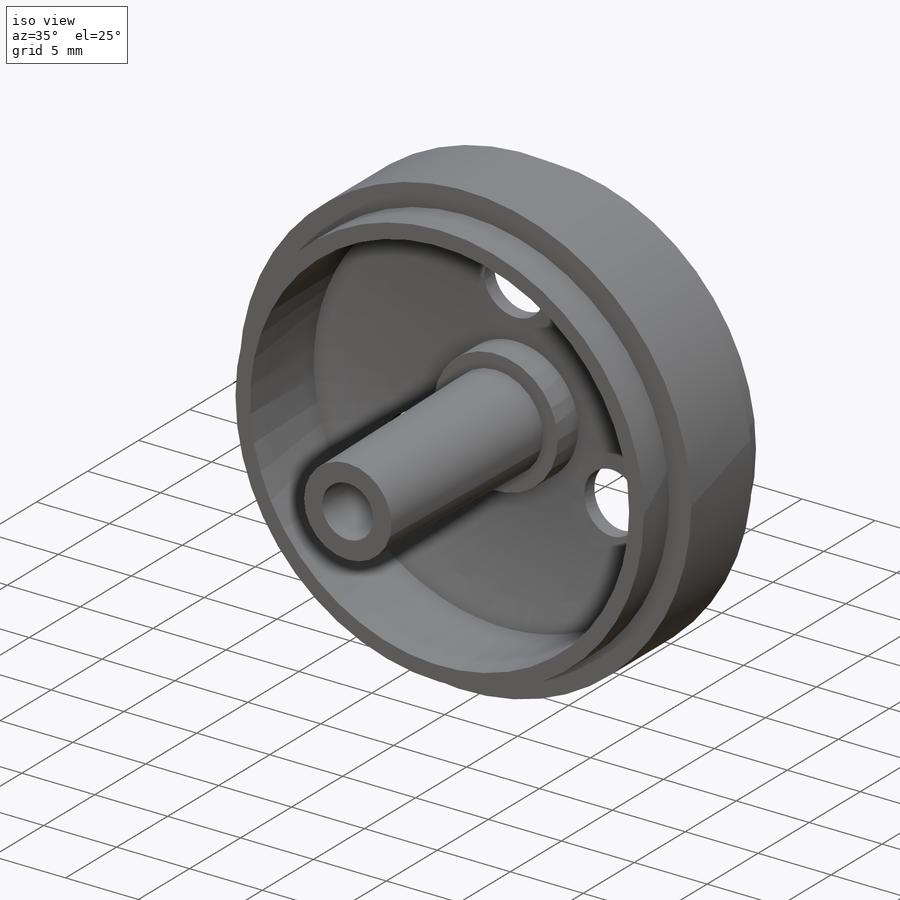
[diagram: iso view]
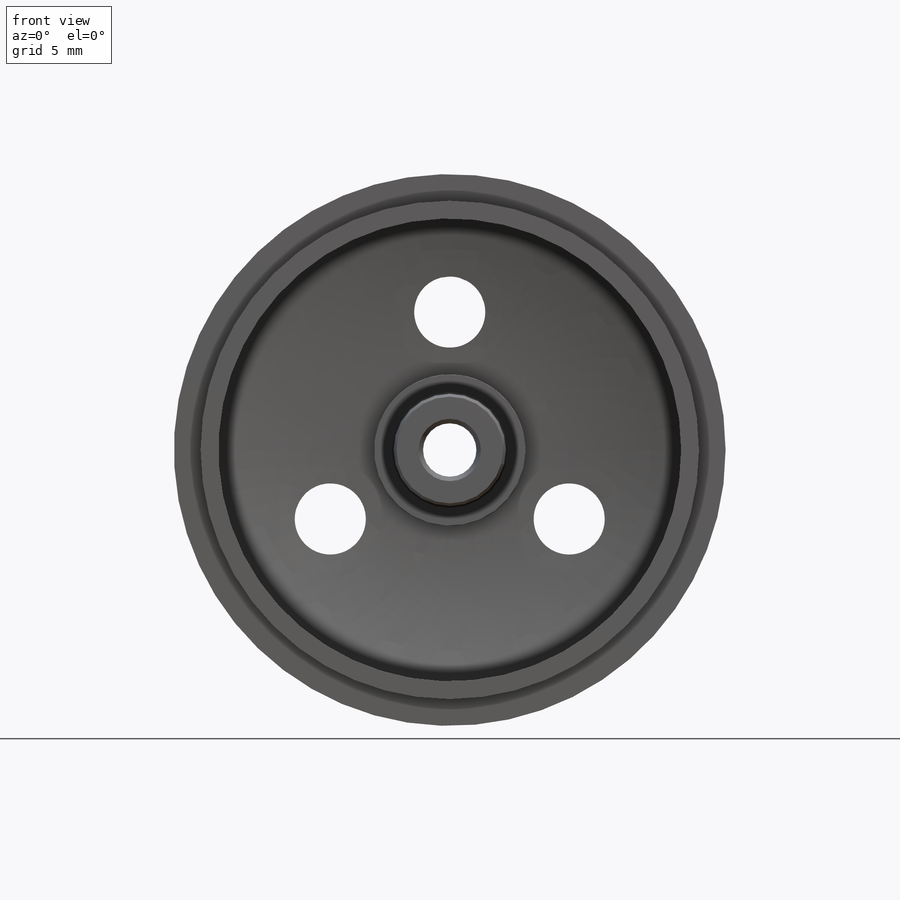
[diagram: front view]
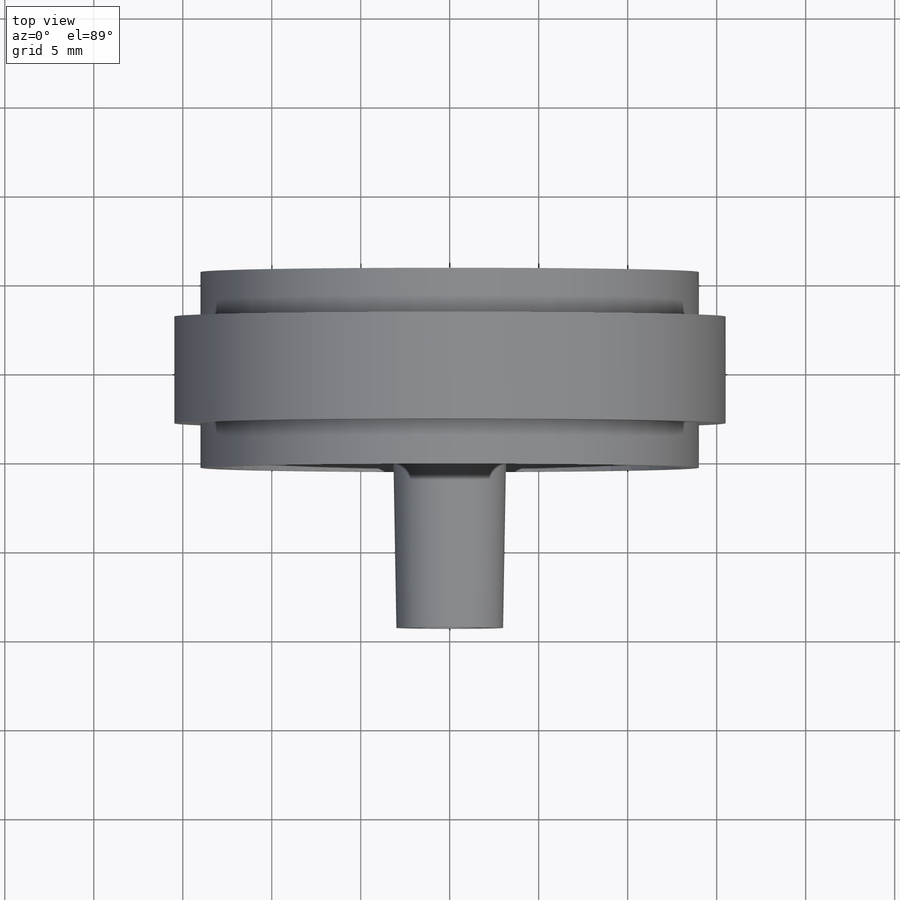
[diagram: top view]
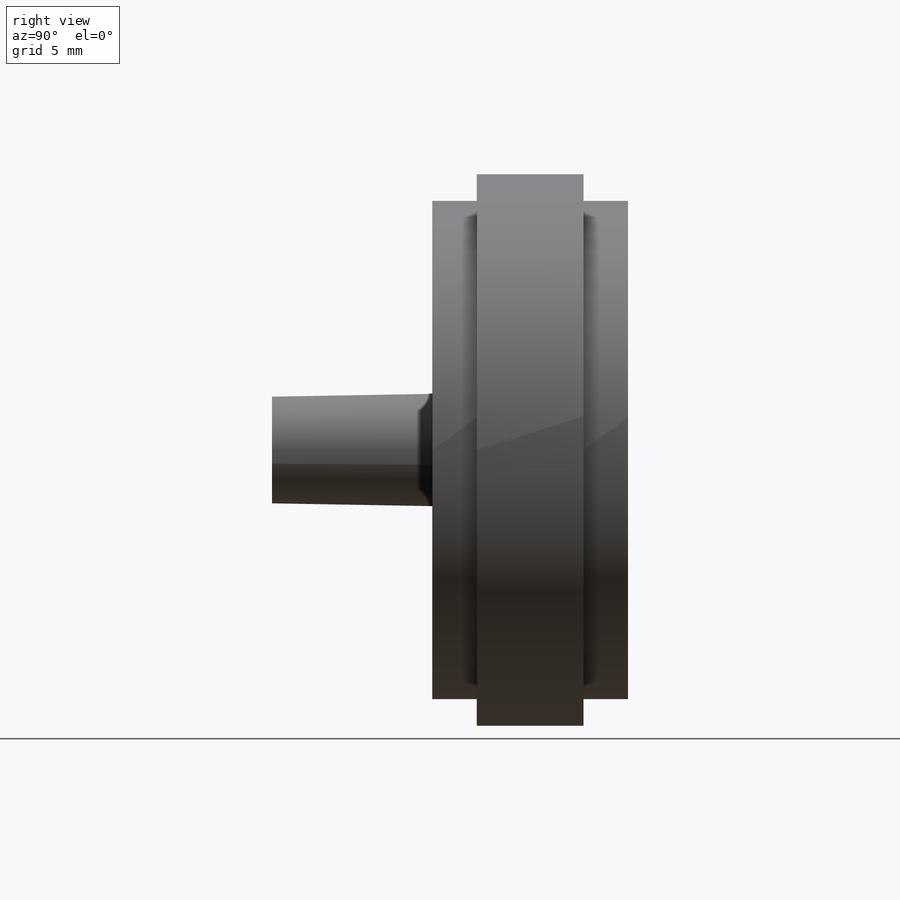
[diagram: right view]
SOLIDWORKS PART (.sldprt)
format: sldprt  version: not decoded by parser v0  size: 569,856 bytes
history: native  units: mm
features: sketch x3, material x1, revolve x1, extrude x1, cut_extrude x1 (+11 scaffold rows collapsed)
feature tree (18):
  scaffold x11  (default folders/planes/origin — collapsed)
  material  "Material <not specified>"
  sketch  "Sketch3"  dims[D1=13.0mm D2=1.0mm D3=1.5mm D4=5.5mm D5=2.5mm D6=3.25mm D7=1.0mm D8=5.5mm D9=3.76mm D10=2.5mm D11=1.0mm]
  revolve  "Revolve1"  Angle=360deg
  sketch  "Sketch4"  dims[D1=~1.825623mm]
  extrude  "Boss-Extrude1"  Depth=14.5mm
  sketch  "Sketch5"  dims[c1.D1=~1.779896mm c2.D1=3.0]
  cut_extrude  "Cut-Extrude1"  Depth=14.5mm
decode coverage: 6 of 6 modeling features carry decoded parameters
note: ~ marks probable driven/reference dimensions
note: suppression state not decoded; provenance and decode notes live in map.json
